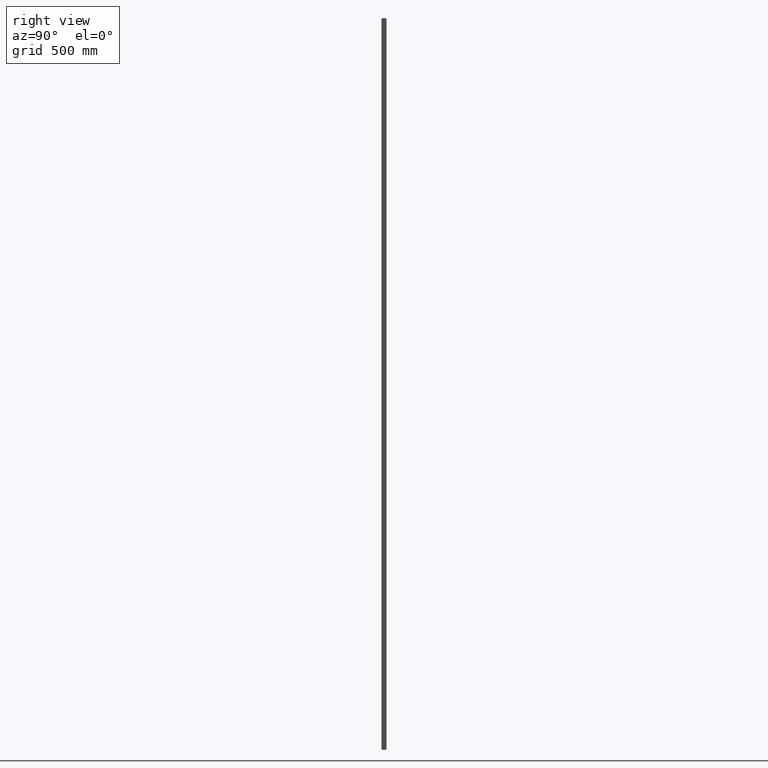
[diagram: clean part render]
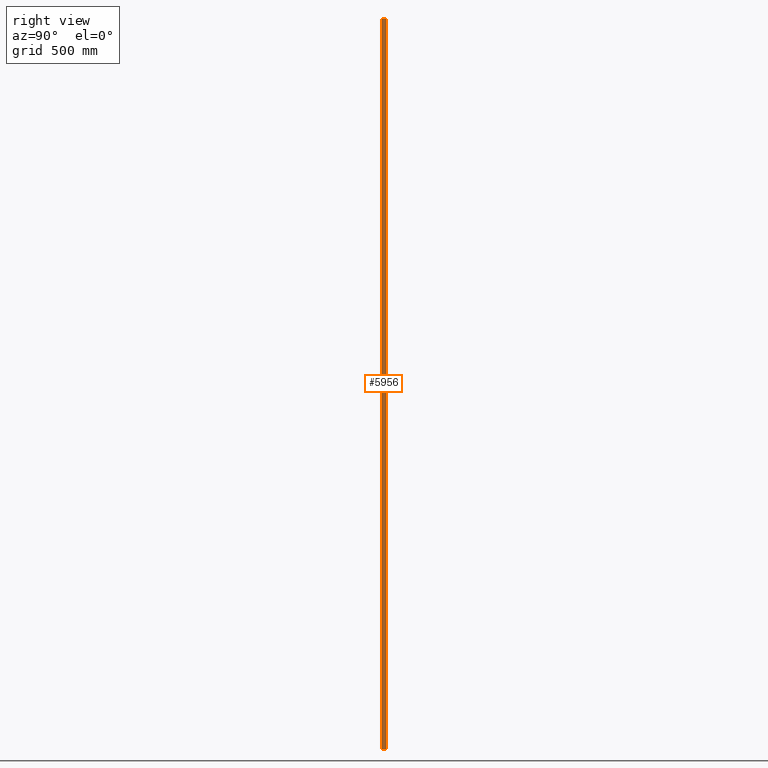
[diagram: same view with one face highlighted and labeled with its STEP entity id]
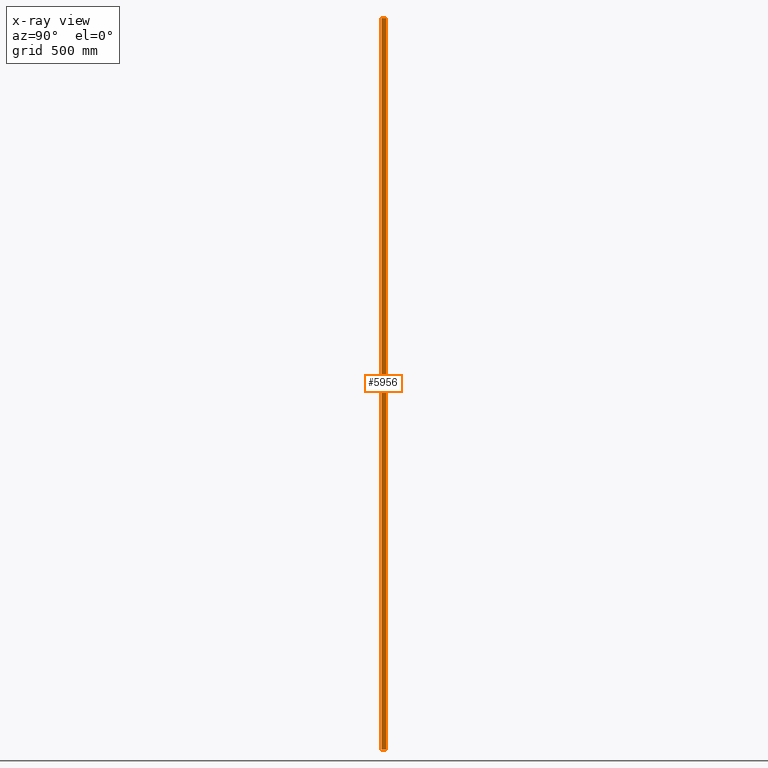
[diagram: x-ray of the same camera — body ghosted, the highlighted face saturated]
A machine part, right view. The second image highlights one B-rep face of the part: STEP entity #5956.
The next image is the same camera in x-ray: the body ghosted, the highlighted face saturated — about 0% of this face is hidden behind the body in this view.
In plain terms, the highlighted planar face has unit normal (1, 0, -0).
Its self-contained STEP definition (entity closure, byte-faithful):
#657 = LINE ( 'NONE', #15034, #9763 ) ;
#727 = DIRECTION ( 'NONE',  ( 1.000000000000000000, 0.0000000000000000000, -0.0000000000000000000 ) ) ;
#1765 = PLANE ( 'NONE',  #6119 ) ;
#1919 = CARTESIAN_POINT ( 'NONE',  ( 14.00000000000000000, 18.00000000000000700, 1500.000000000000000 ) ) ;
#1961 = LINE ( 'NONE', #12200, #10872 ) ;
#1971 = DIRECTION ( 'NONE',  ( -0.0000000000000000000, 0.0000000000000000000, -1.000000000000000000 ) ) ;
#2801 = LINE ( 'NONE', #12413, #11883 ) ;
#3160 = EDGE_CURVE ( 'NONE', #4576, #5344, #12243, .T. ) ;
#3221 = EDGE_CURVE ( 'NONE', #13367, #4576, #2801, .T. ) ;
#4576 = VERTEX_POINT ( 'NONE', #8787 ) ;
#4955 = DIRECTION ( 'NONE',  ( 0.0000000000000000000, -1.000000000000000000, 0.0000000000000000000 ) ) ;
#5344 = VERTEX_POINT ( 'NONE', #7203 ) ;
#5956 = ADVANCED_FACE ( 'NONE', ( #13927 ), #1765, .T. ) ;
#6119 = AXIS2_PLACEMENT_3D ( 'NONE', #1919, #727, #1971 ) ;
#6999 = EDGE_LOOP ( 'NONE', ( #13000, #7700, #10367, #8483 ) ) ;
#7203 = CARTESIAN_POINT ( 'NONE',  ( 14.00000000000000000, 0.5000000000000033300, -1500.000000000000000 ) ) ;
#7491 = EDGE_CURVE ( 'NONE', #7875, #5344, #657, .T. ) ;
#7700 = ORIENTED_EDGE ( 'NONE', *, *, #3221, .F. ) ;
#7875 = VERTEX_POINT ( 'NONE', #9129 ) ;
#8483 = ORIENTED_EDGE ( 'NONE', *, *, #7491, .T. ) ;
#8787 = CARTESIAN_POINT ( 'NONE',  ( 13.99999999999999800, 18.00000000000000700, -1500.000000000000000 ) ) ;
#9129 = CARTESIAN_POINT ( 'NONE',  ( 14.00000000000000000, 0.5000000000000033300, 1500.000000000000000 ) ) ;
#9152 = VECTOR ( 'NONE', #4955, 1000.000000000000000 ) ;
#9763 = VECTOR ( 'NONE', #13032, 1000.000000000000000 ) ;
#10367 = ORIENTED_EDGE ( 'NONE', *, *, #10930, .T. ) ;
#10872 = VECTOR ( 'NONE', #12248, 1000.000000000000000 ) ;
#10930 = EDGE_CURVE ( 'NONE', #13367, #7875, #1961, .T. ) ;
#11134 = DIRECTION ( 'NONE',  ( -0.0000000000000000000, -0.0000000000000000000, -1.000000000000000000 ) ) ;
#11883 = VECTOR ( 'NONE', #11134, 1000.000000000000000 ) ;
#12200 = CARTESIAN_POINT ( 'NONE',  ( 14.00000000000000000, 18.00000000000000700, 1500.000000000000000 ) ) ;
#12243 = LINE ( 'NONE', #14068, #9152 ) ;
#12248 = DIRECTION ( 'NONE',  ( 0.0000000000000000000, -1.000000000000000000, 0.0000000000000000000 ) ) ;
#12413 = CARTESIAN_POINT ( 'NONE',  ( 13.99999999999999800, 18.00000000000000700, 1500.000000000000000 ) ) ;
#13000 = ORIENTED_EDGE ( 'NONE', *, *, #3160, .F. ) ;
#13032 = DIRECTION ( 'NONE',  ( -0.0000000000000000000, -0.0000000000000000000, -1.000000000000000000 ) ) ;
#13367 = VERTEX_POINT ( 'NONE', #15057 ) ;
#13927 = FACE_OUTER_BOUND ( 'NONE', #6999, .T. ) ;
#14068 = CARTESIAN_POINT ( 'NONE',  ( 14.00000000000000000, 18.00000000000000700, -1500.000000000000000 ) ) ;
#15034 = CARTESIAN_POINT ( 'NONE',  ( 14.00000000000000000, 0.5000000000000033300, 1500.000000000000000 ) ) ;
#15057 = CARTESIAN_POINT ( 'NONE',  ( 13.99999999999999800, 18.00000000000000700, 1500.000000000000000 ) ) ;